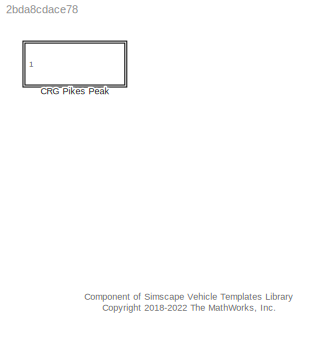
MODEL slx_2bda8cdace78
KIND library
CONFIG AbsTol = auto
CONFIG EnableMultiTasking = off
CONFIG FixedStep = auto
CONFIG MaxStep = auto
CONFIG MinStep = auto
CONFIG RelTol = 1e-3
CONFIG SampleTimeConstraint = Unconstrained
CONFIG SolverName = VariableStepAuto
CONFIG StartTime = 0.0
CONFIG StopTime = 10.0
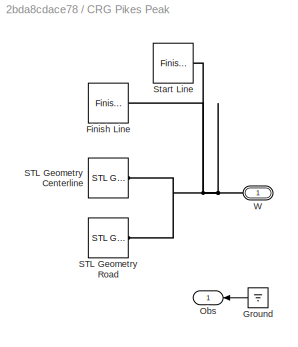
BLOCK [SubSystem] CRG Pikes Peak
  Ports = [0, 1, 0, 0, 0, 1]
  RequestExecContextInheritance = off
BLOCK [Reference] CRG Pikes Peak/Finish Line  REF=sm_car_lib/Environment/Finish Line  (lib defined in slx_05426f0848b6, slx_5dc2867fb1c9)
  Ports = [0, 0, 0, 0, 0, 1]
  SourceBlock = sm_car_lib/Environment/Finish Line
BLOCK [Ground] CRG Pikes Peak/Ground
  NameLocation = top
BLOCK [Outport] CRG Pikes Peak/Obs
  VectorParamsAs1DForOutWhenUnconnected = off
BLOCK [Reference] CRG Pikes Peak/STL Geometry Centerline  REF=sm_car_lib/Environment/STL Geometry  (lib defined in slx_05426f0848b6, slx_5dc2867fb1c9)
  Ports = [0, 0, 0, 0, 0, 0, 1]
  SourceBlock = sm_car_lib/Environment/STL Geometry
BLOCK [Reference] CRG Pikes Peak/STL Geometry Road  REF=sm_car_lib/Environment/STL Geometry  (lib defined in slx_05426f0848b6, slx_5dc2867fb1c9)
  Ports = [0, 0, 0, 0, 0, 0, 1]
  SourceBlock = sm_car_lib/Environment/STL Geometry
BLOCK [Reference] CRG Pikes Peak/Start Line  REF=sm_car_lib/Environment/Finish Line  (lib defined in slx_05426f0848b6, slx_5dc2867fb1c9)
  Ports = [0, 0, 0, 0, 0, 1]
  SourceBlock = sm_car_lib/Environment/Finish Line
BLOCK [PMIOPort] CRG Pikes Peak/W
  NameLocation = top
  Side = Left
ANNOTATION (root): Component of Simscape Vehicle Templates Library <copyright redacted>
LINE CRG Pikes Peak/Ground:1 -> CRG Pikes Peak/Obs:1
PNET net1: CRG Pikes Peak/Finish Line:LConn1 -- CRG Pikes Peak/STL Geometry Centerline:RConn1 -- CRG Pikes Peak/STL Geometry Road:RConn1 -- CRG Pikes Peak/Start Line:LConn1 -- CRG Pikes Peak/W:RConn1
note: PNET lines group multi-terminal physical nets as a canonical sorted terminal list (undirected conserving connections); 2-terminal nets keep the pairwise PLINE form
